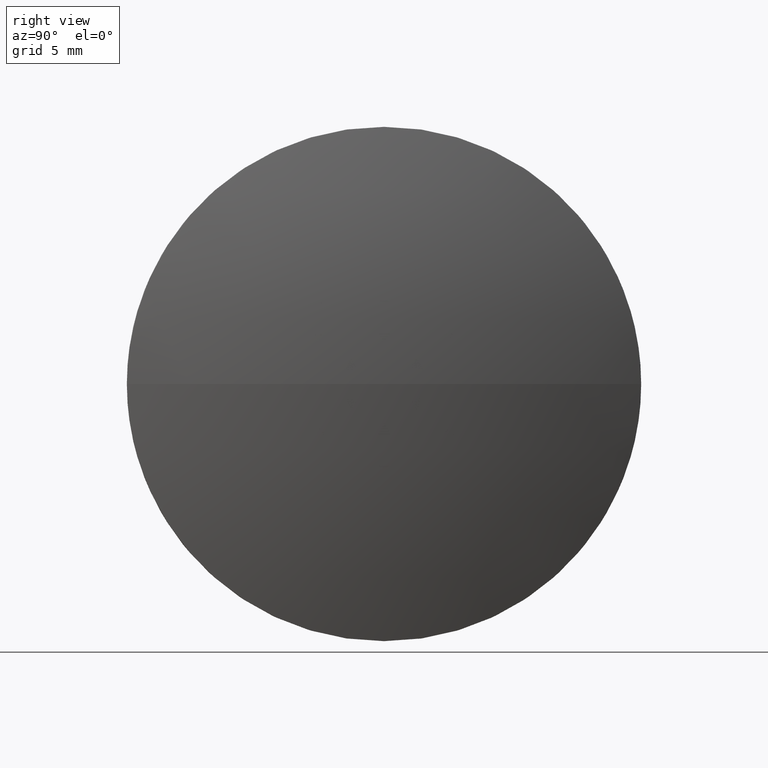
[diagram: clean part render]
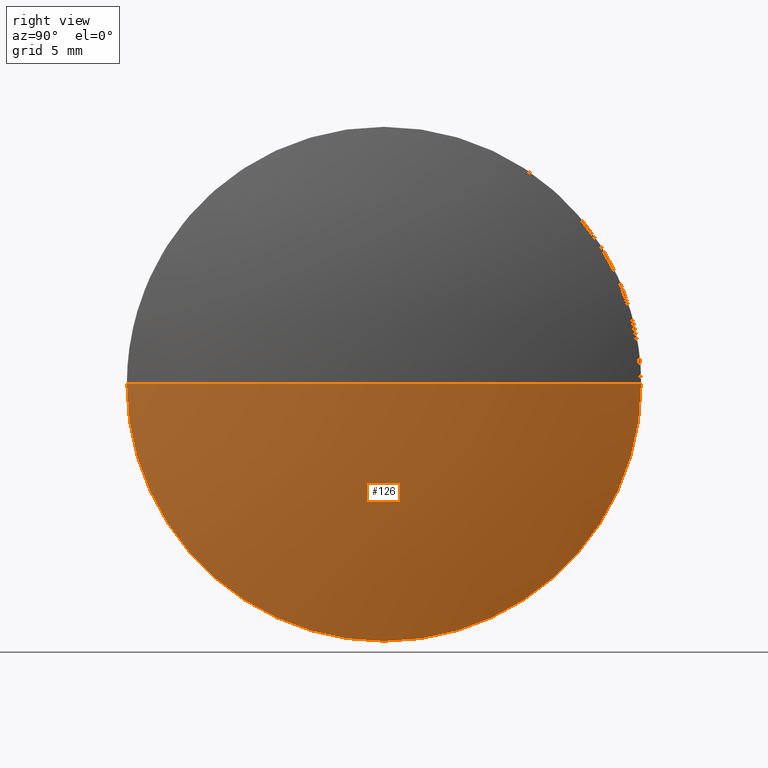
[diagram: same view with one face highlighted and labeled with its STEP entity id]
A machine part, right view. The second image highlights one B-rep face of the part: STEP entity #126.
In plain terms, the highlighted spherical surface has radius 45.7028 mm.
Its self-contained STEP definition (entity closure, byte-faithful):
#1 = ORIENTED_EDGE ( 'NONE', *, *, #17, .F. ) ;
#2 = EDGE_CURVE ( 'NONE', #21, #55, #76, .T. ) ;
#7 = ORIENTED_EDGE ( 'NONE', *, *, #2, .T. ) ;
#12 = CARTESIAN_POINT ( 'NONE',  ( 501.9234374568194400, 104.6700815255058900, 0.0000000000000000000 ) ) ;
#13 = ORIENTED_EDGE ( 'NONE', *, *, #131, .F. ) ;
#14 = DIRECTION ( 'NONE',  ( -1.000000000000000000, -0.0000000000000000000, -0.0000000000000000000 ) ) ;
#17 = EDGE_CURVE ( 'NONE', #21, #156, #134, .T. ) ;
#21 = VERTEX_POINT ( 'NONE', #12 ) ;
#27 = AXIS2_PLACEMENT_3D ( 'NONE', #185, #146, #113 ) ;
#41 = DIRECTION ( 'NONE',  ( 0.0000000000000000000, 0.0000000000000000000, 1.000000000000000000 ) ) ;
#42 = CARTESIAN_POINT ( 'NONE',  ( 500.1234374568194300, 104.6700815255059400, -12.70000000000000300 ) ) ;
#52 = SPHERICAL_SURFACE ( 'NONE', #27, 45.70277777777791800 ) ;
#55 = VERTEX_POINT ( 'NONE', #61 ) ;
#61 = CARTESIAN_POINT ( 'NONE',  ( 500.1234374568194300, 91.97008152550587600, -1.555301434917139400E-015 ) ) ;
#65 = CIRCLE ( 'NONE', #96, 12.70000000000000300 ) ;
#66 = ORIENTED_EDGE ( 'NONE', *, *, #121, .F. ) ;
#73 = AXIS2_PLACEMENT_3D ( 'NONE', #141, #82, #149 ) ;
#76 = CIRCLE ( 'NONE', #186, 45.70277777777792500 ) ;
#79 = CARTESIAN_POINT ( 'NONE',  ( 500.1234374568194300, 117.3700815255059500, 0.0000000000000000000 ) ) ;
#82 = DIRECTION ( 'NONE',  ( -1.000000000000000000, -0.0000000000000000000, -0.0000000000000000000 ) ) ;
#85 = CARTESIAN_POINT ( 'NONE',  ( 456.2206596790415500, 104.6700815255058900, 0.0000000000000000000 ) ) ;
#96 = AXIS2_PLACEMENT_3D ( 'NONE', #105, #14, #41 ) ;
#98 = CIRCLE ( 'NONE', #73, 12.70000000000000300 ) ;
#103 = DIRECTION ( 'NONE',  ( 1.000000000000000000, 0.0000000000000000000, 0.0000000000000000000 ) ) ;
#105 = CARTESIAN_POINT ( 'NONE',  ( 500.1234374568194300, 104.6700815255059400, 0.0000000000000000000 ) ) ;
#113 = DIRECTION ( 'NONE',  ( 0.0000000000000000000, 1.000000000000000000, 0.0000000000000000000 ) ) ;
#121 = EDGE_CURVE ( 'NONE', #156, #135, #65, .T. ) ;
#124 = EDGE_LOOP ( 'NONE', ( #1, #7, #13, #66 ) ) ;
#126 = ADVANCED_FACE ( 'NONE', ( #136 ), #52, .T. ) ;
#127 = CARTESIAN_POINT ( 'NONE',  ( 456.2206596790415500, 104.6700815255058900, 0.0000000000000000000 ) ) ;
#131 = EDGE_CURVE ( 'NONE', #135, #55, #98, .T. ) ;
#134 = CIRCLE ( 'NONE', #142, 45.70277777777792500 ) ;
#135 = VERTEX_POINT ( 'NONE', #42 ) ;
#136 = FACE_OUTER_BOUND ( 'NONE', #124, .T. ) ;
#141 = CARTESIAN_POINT ( 'NONE',  ( 500.1234374568194300, 104.6700815255059400, 0.0000000000000000000 ) ) ;
#142 = AXIS2_PLACEMENT_3D ( 'NONE', #85, #184, #103 ) ;
#146 = DIRECTION ( 'NONE',  ( -0.0000000000000000000, 0.0000000000000000000, -1.000000000000000000 ) ) ;
#149 = DIRECTION ( 'NONE',  ( 0.0000000000000000000, 0.0000000000000000000, 1.000000000000000000 ) ) ;
#154 = DIRECTION ( 'NONE',  ( 0.0000000000000000000, 1.224646799147353200E-016, -1.000000000000000000 ) ) ;
#155 = DIRECTION ( 'NONE',  ( 0.0000000000000000000, 1.000000000000000000, 1.224646799147353000E-016 ) ) ;
#156 = VERTEX_POINT ( 'NONE', #79 ) ;
#184 = DIRECTION ( 'NONE',  ( -0.0000000000000000000, 0.0000000000000000000, 1.000000000000000000 ) ) ;
#185 = CARTESIAN_POINT ( 'NONE',  ( 456.2206596790415500, 104.6700815255058900, 0.0000000000000000000 ) ) ;
#186 = AXIS2_PLACEMENT_3D ( 'NONE', #127, #154, #155 ) ;